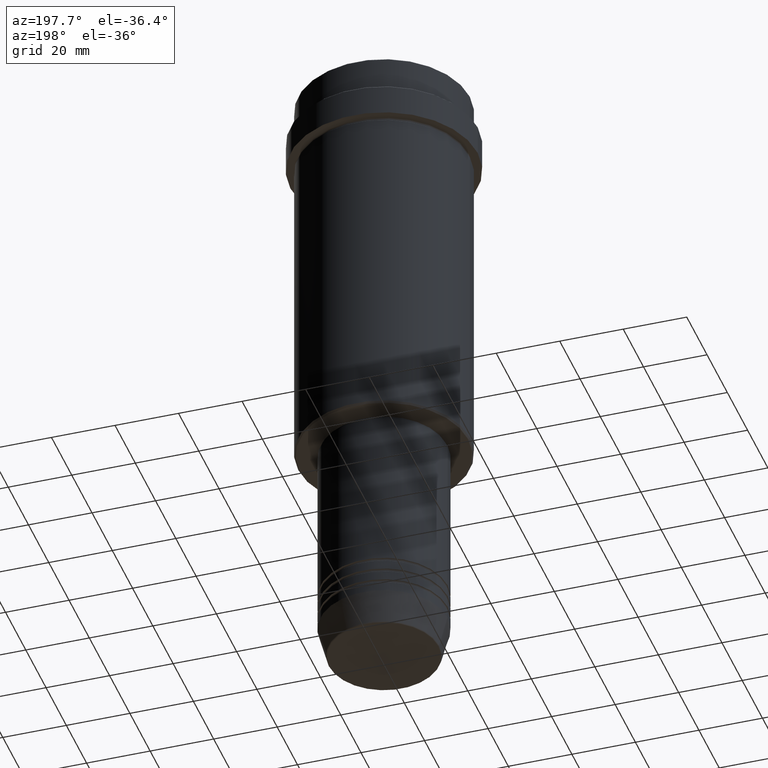
[diagram: clean part render]
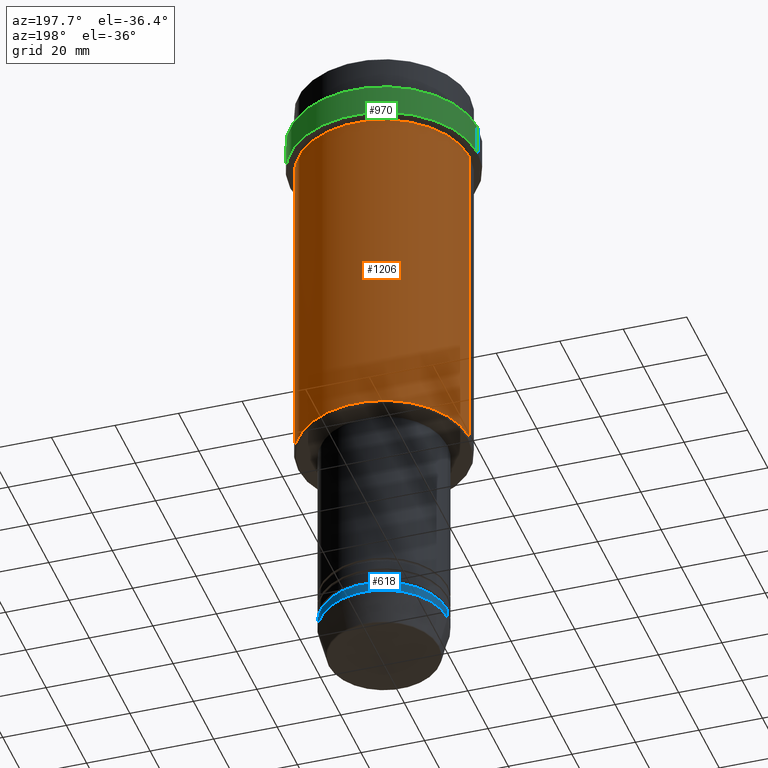
[diagram: same view with three faces highlighted in distinct colors, each labeled with its STEP entity id]
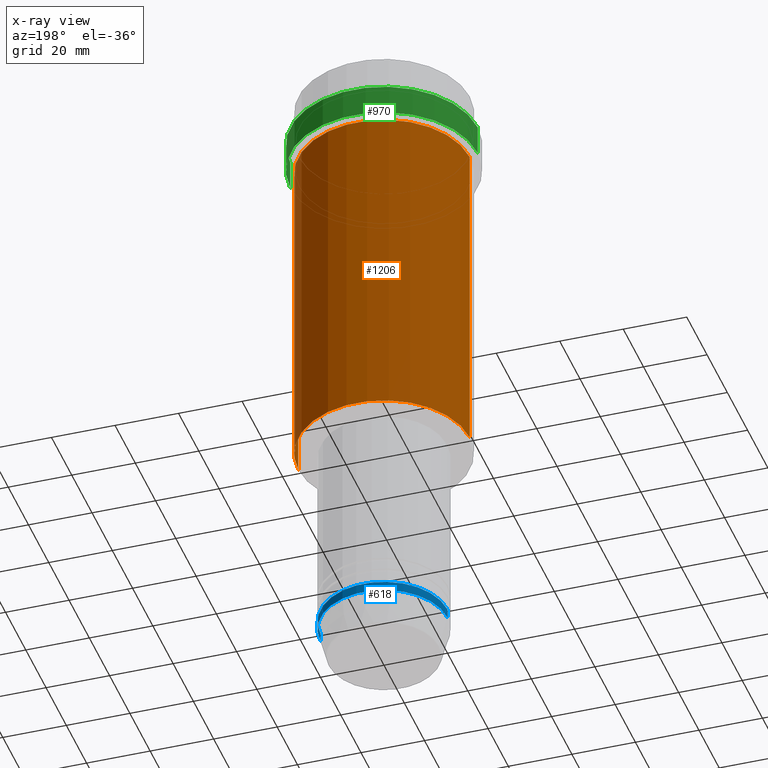
[diagram: x-ray of the same camera — body ghosted, the three highlighted faces saturated]
A machine part, auxiliary view with three faces highlighted in distinct colors.
The next image is the same camera in x-ray (body ghosted, the three faces saturated) — at least one of them is partly hidden behind the body in this view.
Their STEP definitions:

[orange] entity #1206 — the highlighted cylindrical surface (partial cylindrical patch) has radius 27 mm, axis along (-0, -0, 1).
#76 = CYLINDRICAL_SURFACE ( 'NONE', #768, 27.00000000000000355 ) ;
#83 = CARTESIAN_POINT ( 'NONE',  ( -27.00000000000000355, 3.306546357697854128E-15, 0.000000000000000000 ) ) ;
#87 = AXIS2_PLACEMENT_3D ( 'NONE', #1123, #906, #470 ) ;
#151 = EDGE_LOOP ( 'NONE', ( #1152, #1076, #816, #453 ) ) ;
#234 = CARTESIAN_POINT ( 'NONE',  ( 27.00000000000000355, 0.000000000000000000, -127.4999999999999432 ) ) ;
#244 = CARTESIAN_POINT ( 'NONE',  ( 27.00000000000000355, 0.000000000000000000, -23.00000000000001421 ) ) ;
#254 = DIRECTION ( 'NONE',  ( -0.000000000000000000, -0.000000000000000000, 1.000000000000000000 ) ) ;
#279 = FACE_OUTER_BOUND ( 'NONE', #151, .T. ) ;
#388 = CARTESIAN_POINT ( 'NONE',  ( -27.00000000000000355, 3.306546357697854128E-15, -127.4999999999999432 ) ) ;
#445 = LINE ( 'NONE', #1304, #1063 ) ;
#453 = ORIENTED_EDGE ( 'NONE', *, *, #956, .F. ) ;
#470 = DIRECTION ( 'NONE',  ( -1.000000000000000000, 0.000000000000000000, 0.000000000000000000 ) ) ;
#595 = EDGE_CURVE ( 'NONE', #672, #1247, #1335, .T. ) ;
#610 = AXIS2_PLACEMENT_3D ( 'NONE', #1034, #254, #914 ) ;
#672 = VERTEX_POINT ( 'NONE', #234 ) ;
#768 = AXIS2_PLACEMENT_3D ( 'NONE', #1047, #845, #1043 ) ;
#816 = ORIENTED_EDGE ( 'NONE', *, *, #1068, .F. ) ;
#845 = DIRECTION ( 'NONE',  ( -0.000000000000000000, -0.000000000000000000, 1.000000000000000000 ) ) ;
#862 = VECTOR ( 'NONE', #1309, 1000.000000000000000 ) ;
#870 = CARTESIAN_POINT ( 'NONE',  ( -27.00000000000000355, 3.306546357697854128E-15, -23.00000000000001421 ) ) ;
#906 = DIRECTION ( 'NONE',  ( -0.000000000000000000, -0.000000000000000000, 1.000000000000000000 ) ) ;
#914 = DIRECTION ( 'NONE',  ( 1.000000000000000000, 0.000000000000000000, 0.000000000000000000 ) ) ;
#938 = VERTEX_POINT ( 'NONE', #870 ) ;
#956 = EDGE_CURVE ( 'NONE', #672, #1139, #445, .T. ) ;
#1034 = CARTESIAN_POINT ( 'NONE',  ( 0.000000000000000000, 0.000000000000000000, -23.00000000000001421 ) ) ;
#1043 = DIRECTION ( 'NONE',  ( 1.000000000000000000, 0.000000000000000000, 0.000000000000000000 ) ) ;
#1047 = CARTESIAN_POINT ( 'NONE',  ( 0.000000000000000000, 0.000000000000000000, 0.000000000000000000 ) ) ;
#1063 = VECTOR ( 'NONE', #1312, 1000.000000000000000 ) ;
#1068 = EDGE_CURVE ( 'NONE', #1139, #938, #1112, .T. ) ;
#1076 = ORIENTED_EDGE ( 'NONE', *, *, #1412, .T. ) ;
#1112 = CIRCLE ( 'NONE', #610, 27.00000000000000355 ) ;
#1123 = CARTESIAN_POINT ( 'NONE',  ( 0.000000000000000000, 0.000000000000000000, -127.4999999999999432 ) ) ;
#1139 = VERTEX_POINT ( 'NONE', #244 ) ;
#1152 = ORIENTED_EDGE ( 'NONE', *, *, #595, .T. ) ;
#1206 = ADVANCED_FACE ( 'NONE', ( #279 ), #76, .T. ) ;
#1247 = VERTEX_POINT ( 'NONE', #388 ) ;
#1304 = CARTESIAN_POINT ( 'NONE',  ( 27.00000000000000355, 0.000000000000000000, 0.000000000000000000 ) ) ;
#1309 = DIRECTION ( 'NONE',  ( -0.000000000000000000, -0.000000000000000000, 1.000000000000000000 ) ) ;
#1312 = DIRECTION ( 'NONE',  ( -0.000000000000000000, -0.000000000000000000, 1.000000000000000000 ) ) ;
#1321 = LINE ( 'NONE', #83, #862 ) ;
#1335 = CIRCLE ( 'NONE', #87, 27.00000000000000355 ) ;
#1412 = EDGE_CURVE ( 'NONE', #1247, #938, #1321, .T. ) ;

[blue] entity #618 — the highlighted cylindrical surface (partial cylindrical patch) has radius 20 mm, axis along (-0, -0, 1).
#77 = LINE ( 'NONE', #287, #134 ) ;
#95 = EDGE_CURVE ( 'NONE', #1255, #908, #605, .T. ) ;
#127 = CARTESIAN_POINT ( 'NONE',  ( 0.000000000000000000, 0.000000000000000000, 0.000000000000000000 ) ) ;
#134 = VECTOR ( 'NONE', #857, 1000.000000000000000 ) ;
#241 = ORIENTED_EDGE ( 'NONE', *, *, #493, .T. ) ;
#257 = DIRECTION ( 'NONE',  ( -0.000000000000000000, -0.000000000000000000, 1.000000000000000000 ) ) ;
#287 = CARTESIAN_POINT ( 'NONE',  ( -20.00000000000000000, 2.449293598294706513E-15, 0.000000000000000000 ) ) ;
#380 = DIRECTION ( 'NONE',  ( -0.000000000000000000, -0.000000000000000000, 1.000000000000000000 ) ) ;
#414 = AXIS2_PLACEMENT_3D ( 'NONE', #1349, #487, #851 ) ;
#433 = CARTESIAN_POINT ( 'NONE',  ( 20.00000000000000000, 0.000000000000000000, -190.0000000000000000 ) ) ;
#474 = CYLINDRICAL_SURFACE ( 'NONE', #696, 20.00000000000000000 ) ;
#487 = DIRECTION ( 'NONE',  ( -0.000000000000000000, -0.000000000000000000, 1.000000000000000000 ) ) ;
#489 = DIRECTION ( 'NONE',  ( 1.000000000000000000, 0.000000000000000000, 0.000000000000000000 ) ) ;
#493 = EDGE_CURVE ( 'NONE', #1255, #848, #1416, .T. ) ;
#569 = EDGE_CURVE ( 'NONE', #908, #1358, #1039, .T. ) ;
#605 = LINE ( 'NONE', #1041, #1250 ) ;
#618 = ADVANCED_FACE ( 'NONE', ( #1146 ), #474, .T. ) ;
#660 = DIRECTION ( 'NONE',  ( 1.000000000000000000, 0.000000000000000000, 0.000000000000000000 ) ) ;
#681 = ORIENTED_EDGE ( 'NONE', *, *, #95, .F. ) ;
#696 = AXIS2_PLACEMENT_3D ( 'NONE', #127, #257, #489 ) ;
#730 = CARTESIAN_POINT ( 'NONE',  ( -20.00000000000000000, 2.449293598294706513E-15, -193.0000000000000000 ) ) ;
#796 = EDGE_CURVE ( 'NONE', #848, #1358, #77, .T. ) ;
#799 = ORIENTED_EDGE ( 'NONE', *, *, #796, .T. ) ;
#830 = CARTESIAN_POINT ( 'NONE',  ( 20.00000000000000000, 0.000000000000000000, -193.0000000000000000 ) ) ;
#848 = VERTEX_POINT ( 'NONE', #730 ) ;
#851 = DIRECTION ( 'NONE',  ( 1.000000000000000000, 0.000000000000000000, 0.000000000000000000 ) ) ;
#857 = DIRECTION ( 'NONE',  ( -0.000000000000000000, -0.000000000000000000, 1.000000000000000000 ) ) ;
#908 = VERTEX_POINT ( 'NONE', #433 ) ;
#982 = EDGE_LOOP ( 'NONE', ( #241, #799, #1344, #681 ) ) ;
#1039 = CIRCLE ( 'NONE', #414, 20.00000000000000000 ) ;
#1041 = CARTESIAN_POINT ( 'NONE',  ( 20.00000000000000000, 0.000000000000000000, 0.000000000000000000 ) ) ;
#1053 = DIRECTION ( 'NONE',  ( -0.000000000000000000, -0.000000000000000000, 1.000000000000000000 ) ) ;
#1146 = FACE_OUTER_BOUND ( 'NONE', #982, .T. ) ;
#1250 = VECTOR ( 'NONE', #380, 1000.000000000000000 ) ;
#1255 = VERTEX_POINT ( 'NONE', #830 ) ;
#1302 = CARTESIAN_POINT ( 'NONE',  ( -20.00000000000000000, 2.449293598294706513E-15, -190.0000000000000000 ) ) ;
#1308 = AXIS2_PLACEMENT_3D ( 'NONE', #1330, #1053, #660 ) ;
#1330 = CARTESIAN_POINT ( 'NONE',  ( 0.000000000000000000, 0.000000000000000000, -193.0000000000000000 ) ) ;
#1344 = ORIENTED_EDGE ( 'NONE', *, *, #569, .F. ) ;
#1349 = CARTESIAN_POINT ( 'NONE',  ( 0.000000000000000000, 0.000000000000000000, -190.0000000000000000 ) ) ;
#1358 = VERTEX_POINT ( 'NONE', #1302 ) ;
#1416 = CIRCLE ( 'NONE', #1308, 20.00000000000000000 ) ;

[green] entity #970 — the highlighted cylindrical surface (partial cylindrical patch) has radius 29.5 mm, axis along (-0, -0, 1).
#22 = VERTEX_POINT ( 'NONE', #777 ) ;
#41 = CARTESIAN_POINT ( 'NONE',  ( -29.49999999999999645, 3.612708057484690815E-15, -22.00000000000000711 ) ) ;
#50 = VERTEX_POINT ( 'NONE', #642 ) ;
#85 = CYLINDRICAL_SURFACE ( 'NONE', #393, 29.50000000000000000 ) ;
#106 = EDGE_CURVE ( 'NONE', #1394, #50, #979, .T. ) ;
#274 = DIRECTION ( 'NONE',  ( -0.000000000000000000, -0.000000000000000000, 1.000000000000000000 ) ) ;
#295 = AXIS2_PLACEMENT_3D ( 'NONE', #1273, #274, #1165 ) ;
#321 = CARTESIAN_POINT ( 'NONE',  ( 29.49999999999999645, 0.000000000000000000, -22.00000000000000711 ) ) ;
#334 = VERTEX_POINT ( 'NONE', #41 ) ;
#347 = CIRCLE ( 'NONE', #295, 29.49999999999999645 ) ;
#349 = DIRECTION ( 'NONE',  ( 0.000000000000000000, 0.000000000000000000, -1.000000000000000000 ) ) ;
#372 = CARTESIAN_POINT ( 'NONE',  ( 0.000000000000000000, 0.000000000000000000, -12.50000000000000355 ) ) ;
#375 = VECTOR ( 'NONE', #819, 1000.000000000000000 ) ;
#393 = AXIS2_PLACEMENT_3D ( 'NONE', #452, #1323, #1093 ) ;
#452 = CARTESIAN_POINT ( 'NONE',  ( 0.000000000000000000, 0.000000000000000000, 0.000000000000000000 ) ) ;
#458 = ORIENTED_EDGE ( 'NONE', *, *, #1260, .T. ) ;
#529 = ORIENTED_EDGE ( 'NONE', *, *, #106, .F. ) ;
#623 = LINE ( 'NONE', #1061, #375 ) ;
#642 = CARTESIAN_POINT ( 'NONE',  ( 29.50000000000000000, 0.000000000000000000, -12.50000000000000355 ) ) ;
#687 = EDGE_CURVE ( 'NONE', #22, #50, #1396, .T. ) ;
#754 = CARTESIAN_POINT ( 'NONE',  ( 29.50000000000000000, 0.000000000000000000, 0.000000000000000000 ) ) ;
#777 = CARTESIAN_POINT ( 'NONE',  ( -29.50000000000000000, 3.612708057484691604E-15, -12.50000000000000355 ) ) ;
#815 = DIRECTION ( 'NONE',  ( 1.000000000000000000, 0.000000000000000000, 0.000000000000000000 ) ) ;
#819 = DIRECTION ( 'NONE',  ( -0.000000000000000000, -0.000000000000000000, 1.000000000000000000 ) ) ;
#874 = DIRECTION ( 'NONE',  ( -0.000000000000000000, -0.000000000000000000, 1.000000000000000000 ) ) ;
#880 = AXIS2_PLACEMENT_3D ( 'NONE', #372, #349, #815 ) ;
#970 = ADVANCED_FACE ( 'NONE', ( #993 ), #85, .T. ) ;
#979 = LINE ( 'NONE', #754, #1001 ) ;
#993 = FACE_OUTER_BOUND ( 'NONE', #1317, .T. ) ;
#1001 = VECTOR ( 'NONE', #874, 1000.000000000000000 ) ;
#1061 = CARTESIAN_POINT ( 'NONE',  ( -29.50000000000000000, 3.612708057484691604E-15, 0.000000000000000000 ) ) ;
#1093 = DIRECTION ( 'NONE',  ( 1.000000000000000000, 0.000000000000000000, 0.000000000000000000 ) ) ;
#1165 = DIRECTION ( 'NONE',  ( 1.000000000000000000, 0.000000000000000000, 0.000000000000000000 ) ) ;
#1260 = EDGE_CURVE ( 'NONE', #1394, #334, #347, .T. ) ;
#1273 = CARTESIAN_POINT ( 'NONE',  ( 0.000000000000000000, 0.000000000000000000, -22.00000000000000711 ) ) ;
#1290 = EDGE_CURVE ( 'NONE', #334, #22, #623, .T. ) ;
#1317 = EDGE_LOOP ( 'NONE', ( #458, #1322, #1402, #529 ) ) ;
#1322 = ORIENTED_EDGE ( 'NONE', *, *, #1290, .T. ) ;
#1323 = DIRECTION ( 'NONE',  ( -0.000000000000000000, -0.000000000000000000, 1.000000000000000000 ) ) ;
#1394 = VERTEX_POINT ( 'NONE', #321 ) ;
#1396 = CIRCLE ( 'NONE', #880, 29.50000000000000000 ) ;
#1402 = ORIENTED_EDGE ( 'NONE', *, *, #687, .T. ) ;